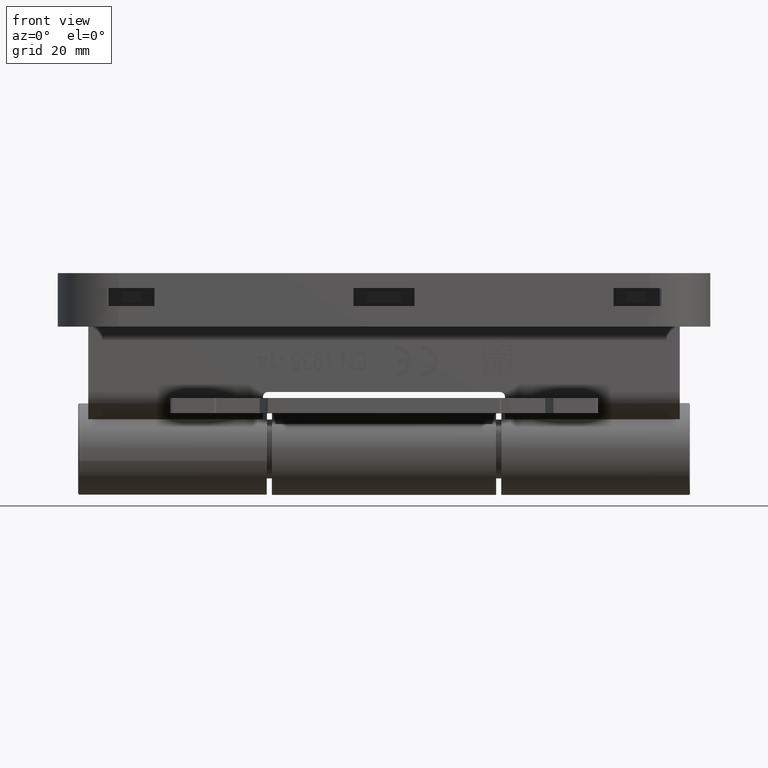
[diagram: clean part render]
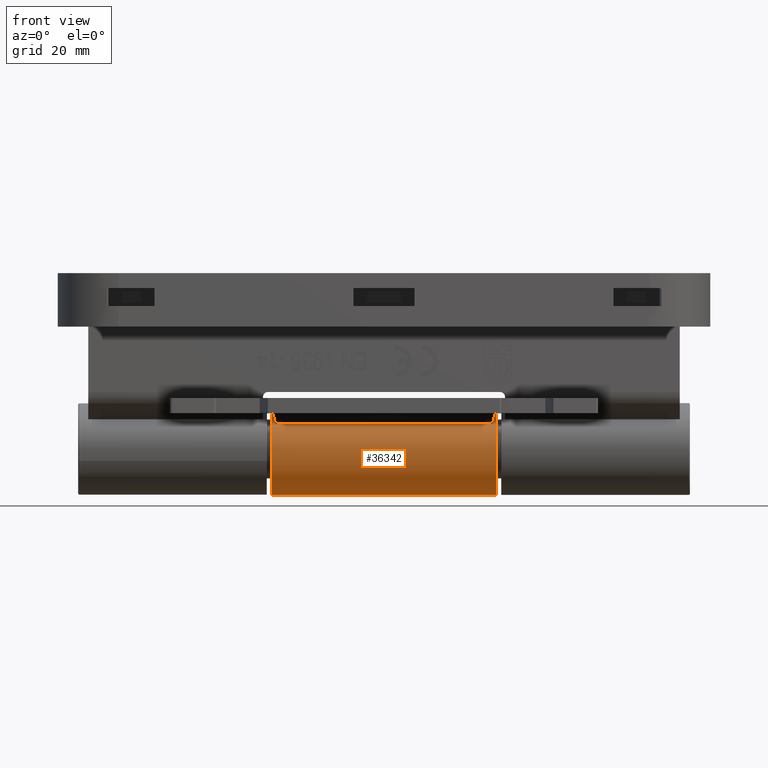
[diagram: same view with one face highlighted and labeled with its STEP entity id]
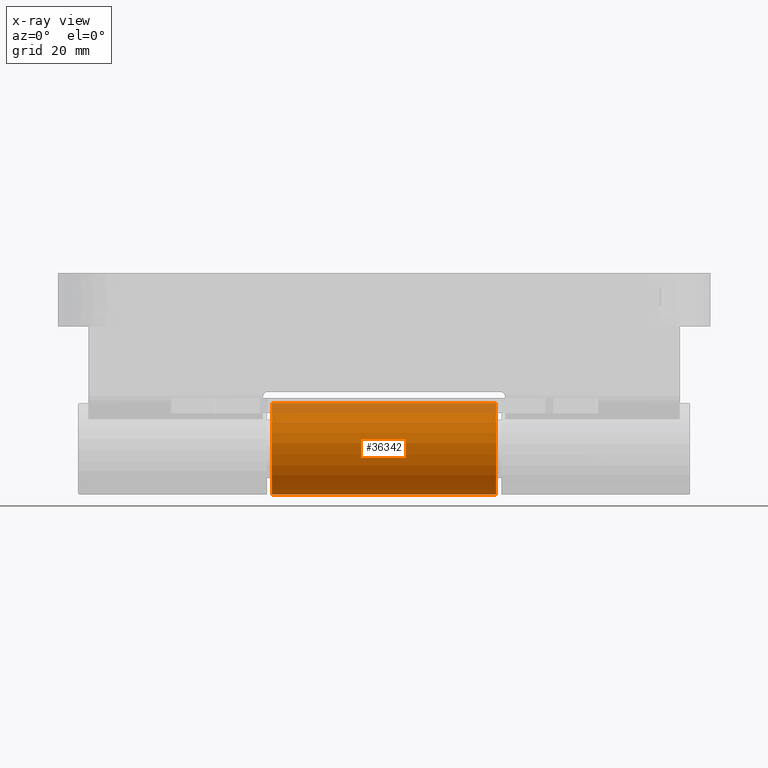
[diagram: x-ray of the same camera — body ghosted, the highlighted face saturated]
A machine part, front view. The second image highlights one B-rep face of the part: STEP entity #36342.
The next image is the same camera in x-ray: the body ghosted, the highlighted face saturated — about 11% of this face is hidden behind the body in this view.
In plain terms, the highlighted cylindrical surface (partial cylindrical patch) has radius 9 mm, axis along (1, 0, 0).
Its self-contained STEP definition (entity closure, byte-faithful):
#412 = VECTOR ( 'NONE', #6152, 1000.000000000000000 ) ;
#4931 = CARTESIAN_POINT ( 'NONE',  ( 22.00000000000000000, 1.647987302177966740E-14, 0.000000000000000000 ) ) ;
#5813 = CARTESIAN_POINT ( 'NONE',  ( 34.99999999999999289, 3.469446951953614189E-15, 0.000000000000000000 ) ) ;
#5999 = AXIS2_PLACEMENT_3D ( 'NONE', #5813, #18533, #10476 ) ;
#6152 = DIRECTION ( 'NONE',  ( 1.000000000000000000, 3.330669073875505120E-16, 1.627031336755150732E-30 ) ) ;
#7369 = VERTEX_POINT ( 'NONE', #50389 ) ;
#10476 = DIRECTION ( 'NONE',  ( 0.000000000000000000, -5.991782049204734154E-31, -1.000000000000000000 ) ) ;
#11663 = CARTESIAN_POINT ( 'NONE',  ( 22.00000000000000000, -7.085712687378029115E-15, 9.000000000000000000 ) ) ;
#11861 = CARTESIAN_POINT ( 'NONE',  ( -22.00000000000000000, -1.647987302177966740E-14, 0.000000000000000000 ) ) ;
#13248 = DIRECTION ( 'NONE',  ( 1.000000000000000000, 3.330669073875505120E-16, 1.627031336755150732E-30 ) ) ;
#15630 = VERTEX_POINT ( 'NONE', #11663 ) ;
#18533 = DIRECTION ( 'NONE',  ( 1.000000000000000000, 3.330669073875505120E-16, 1.627031336755150732E-30 ) ) ;
#18684 = VERTEX_POINT ( 'NONE', #19005 ) ;
#19005 = CARTESIAN_POINT ( 'NONE',  ( -22.00000000000000000, -7.085712687378030693E-15, 9.000000000000000000 ) ) ;
#20605 = EDGE_CURVE ( 'NONE', #18684, #15630, #25911, .T. ) ;
#25514 = AXIS2_PLACEMENT_3D ( 'NONE', #11861, #27717, #27228 ) ;
#25911 = LINE ( 'NONE', #45909, #412 ) ;
#26337 = FACE_OUTER_BOUND ( 'NONE', #44320, .T. ) ;
#26453 = AXIS2_PLACEMENT_3D ( 'NONE', #4931, #13248, #29622 ) ;
#27228 = DIRECTION ( 'NONE',  ( 0.000000000000000000, -6.847750913376838783E-31, -1.000000000000000000 ) ) ;
#27717 = DIRECTION ( 'NONE',  ( 1.000000000000000000, 3.330669073875505120E-16, 1.627031336755150732E-30 ) ) ;
#27974 = VECTOR ( 'NONE', #46213, 1000.000000000000000 ) ;
#28459 = EDGE_CURVE ( 'NONE', #18684, #7369, #31302, .T. ) ;
#29622 = DIRECTION ( 'NONE',  ( 0.000000000000000000, -6.847750913376838783E-31, -1.000000000000000000 ) ) ;
#30221 = EDGE_CURVE ( 'NONE', #7369, #46888, #42578, .T. ) ;
#31302 = CIRCLE ( 'NONE', #25514, 9.000000000000000000 ) ;
#31375 = EDGE_CURVE ( 'NONE', #15630, #46888, #43862, .T. ) ;
#33622 = CYLINDRICAL_SURFACE ( 'NONE', #5999, 9.000000000000000000 ) ;
#33790 = ORIENTED_EDGE ( 'NONE', *, *, #31375, .F. ) ;
#35444 = ORIENTED_EDGE ( 'NONE', *, *, #30221, .T. ) ;
#36342 = ADVANCED_FACE ( 'NONE', ( #26337 ), #33622, .T. ) ;
#38918 = ORIENTED_EDGE ( 'NONE', *, *, #20605, .F. ) ;
#41806 = CARTESIAN_POINT ( 'NONE',  ( 34.99999999999999289, 3.469446951953608667E-15, -9.000000000000000000 ) ) ;
#42578 = LINE ( 'NONE', #41806, #27974 ) ;
#43862 = CIRCLE ( 'NONE', #26453, 9.000000000000000000 ) ;
#44320 = EDGE_LOOP ( 'NONE', ( #38918, #50168, #35444, #33790 ) ) ;
#45909 = CARTESIAN_POINT ( 'NONE',  ( 34.99999999999999289, 4.571629071186237622E-15, 9.000000000000000000 ) ) ;
#46213 = DIRECTION ( 'NONE',  ( 1.000000000000000000, 3.330669073875505120E-16, 1.627031336755150732E-30 ) ) ;
#46888 = VERTEX_POINT ( 'NONE', #48715 ) ;
#48715 = CARTESIAN_POINT ( 'NONE',  ( 22.00000000000000000, 1.647987302177966109E-14, -9.000000000000000000 ) ) ;
#50168 = ORIENTED_EDGE ( 'NONE', *, *, #28459, .T. ) ;
#50389 = CARTESIAN_POINT ( 'NONE',  ( -22.00000000000000000, -1.647987302177967371E-14, -9.000000000000000000 ) ) ;